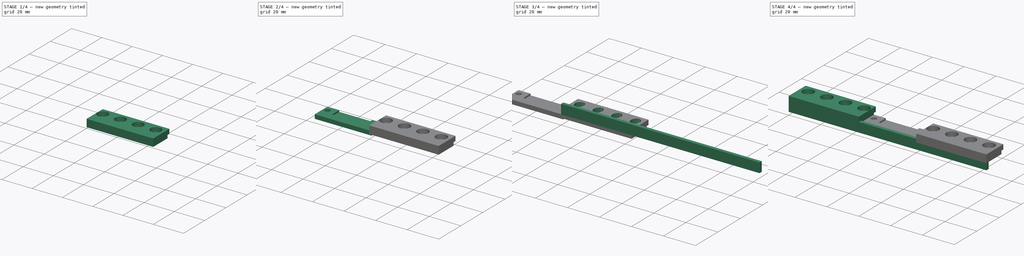
[diagram: build sequence overview — one tinted view per stage of 4, left to right]
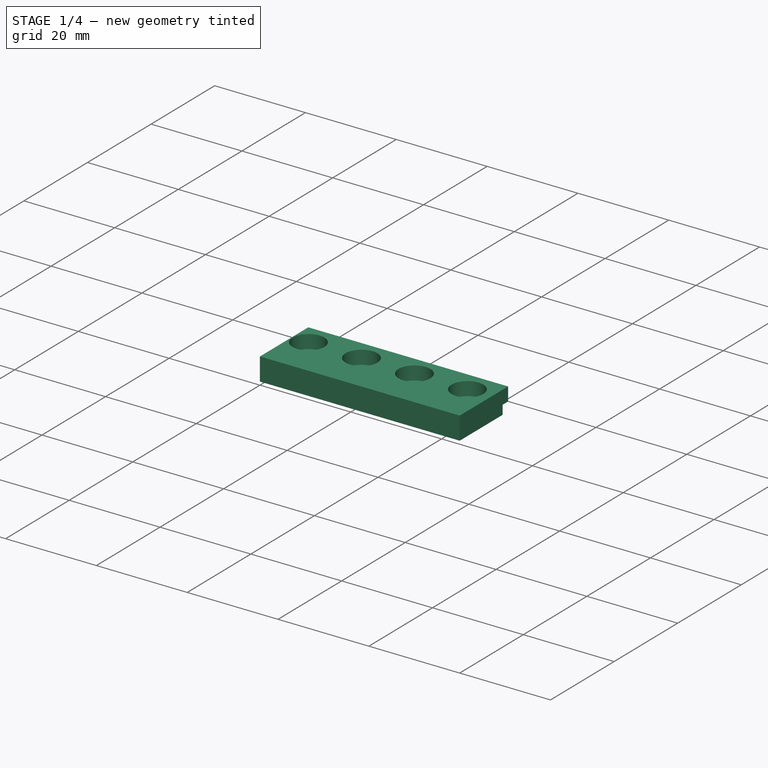
[diagram: stage 1 of 4 — iso view after this stage's code; geometry added in this stage tinted green]
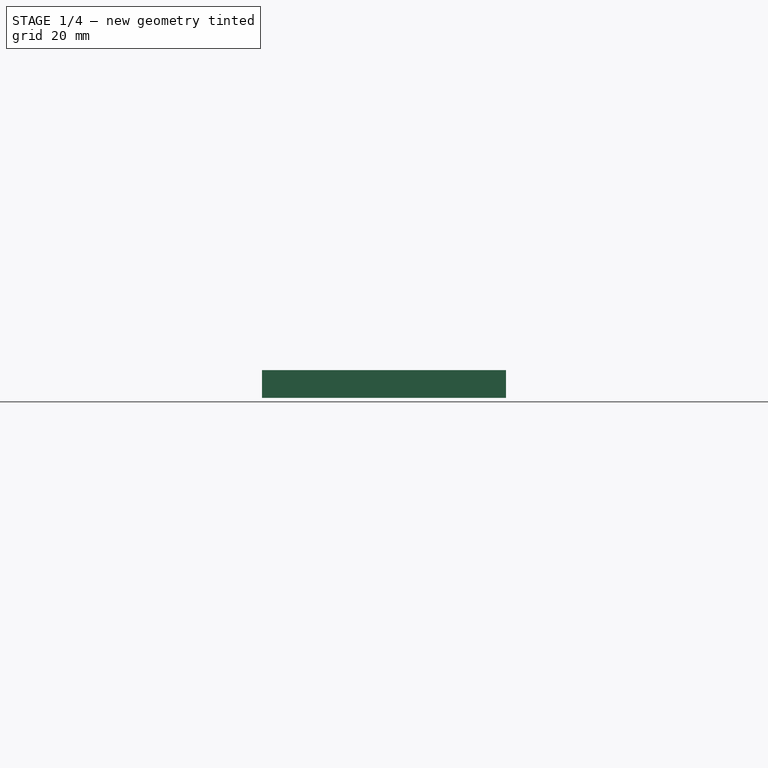
[diagram: stage 1 of 4 — front view after this stage's code; geometry added in this stage tinted green]
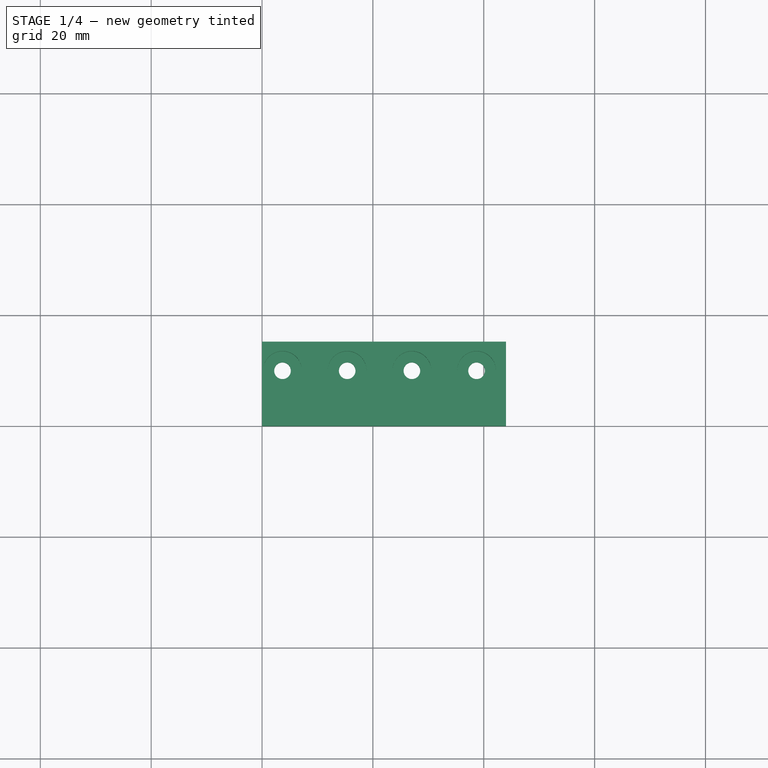
[diagram: stage 1 of 4 — top view after this stage's code; geometry added in this stage tinted green]
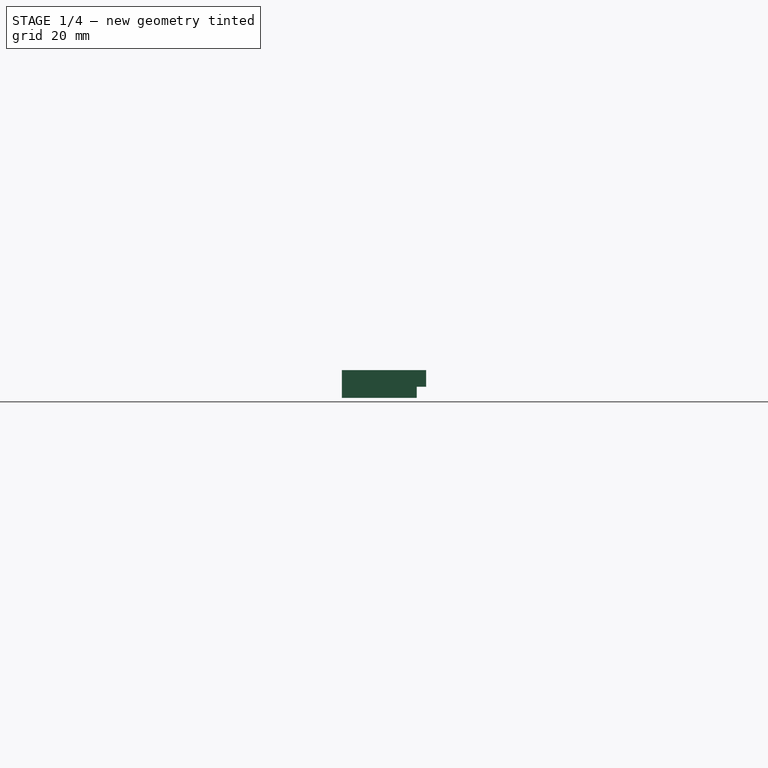
[diagram: stage 1 of 4 — right view after this stage's code; geometry added in this stage tinted green]
FCSTD DOCUMENT  (FreeCAD 0.19R24291 (Git))
Label: support1
License: Creative Commons Attribution-NonCommercial-ShareAlike
LicenseURL: http://creativecommons.org/licenses/by-nc-sa/4.0/
objects: PartDesign::Line×11, Sketcher::SketchObject×6, PartDesign::Pad×6, PartDesign::Body×6, PartDesign::CoordinateSystem×3, PartDesign::SubtractiveBox×2, PartDesign::FeatureBase×2, Part::Box×1, Part::FeaturePython×1, Part::MultiFuse×1, App::Part×1
note: 47 computed .brp shape members not serialized (recipe doc carries the construction recipe); baked Part::Feature solids carry a one-line shape summary decoded from their .brp

FEATURE [PartDesign::CoordinateSystem] LCS_0
  AttacherType = Attacher::AttachEngine3D
  MapMode = 2
  Support = -> [X_Axis]
FEATURE [PartDesign::CoordinateSystem] LCS_0001
  AttacherType = Attacher::AttachEngine3D
  MapMode = 2
  Support = -> [X_Axis001]
FEATURE [Sketcher::SketchObject] Sketch001
  FullyConstrained = true
  sketch-geometry (8):
    g0: LineSegment StartX=0 StartY=0 StartZ=0 EndX=44 EndY=0 EndZ=0
    g1: LineSegment StartX=44 StartY=0 StartZ=0 EndX=44 EndY=15.2 EndZ=0
    g2: LineSegment StartX=44 StartY=15.2 StartZ=0 EndX=0 EndY=15.2 EndZ=0
    g3: LineSegment StartX=0 StartY=15.2 StartZ=0 EndX=0 EndY=0 EndZ=0
    g4: Circle CenterX=5.3 CenterY=10 CenterZ=0 NormalX=0 NormalY=0 NormalZ=1 AngleXU=0 Radius=1.6
    g5: Circle CenterX=16.97 CenterY=10 CenterZ=0 NormalX=0 NormalY=0 NormalZ=1 AngleXU=0 Radius=1.6
    g6: Circle CenterX=28.64 CenterY=10 CenterZ=0 NormalX=0 NormalY=0 NormalZ=1 AngleXU=0 Radius=1.6
    g7: Circle CenterX=40.31 CenterY=10 CenterZ=0 NormalX=0 NormalY=0 NormalZ=1 AngleXU=0 Radius=1.6
  constraints (23):
    c: Coincident(g0,g1)
    c: Coincident(g1,g2)
    c: Coincident(g2,g3)
    c: Coincident(g3,g0)
    c: Horizontal(g0)
    c: Horizontal(g2)
    c: Vertical(g1)
    c: Vertical(g3)
    c: Coincident(g0,g-1)
    c: Equal(g5,g4)
    c: Equal(g4,g6)
    c: Equal(g6,g7)
    c: DistanceY(g5,g4) = 0
    c: DistanceY(g6,g5) = 0
    c: DistanceY(g7,g6) = 0
    c: Distance(g4,g3) = 5.3
    c: Distance(g4,g2) = 5.2
    c: DistanceX(g4,g5) = 11.67
    c: DistanceX(g5,g6) = 11.67
    c: DistanceX(g6,g7) = 11.67
    c: DistanceY(g3,g3) = 15.2
    c: DistanceX(g0,g0) = 44
    c: Diameter(g4) = 3.2
FEATURE [Sketcher::SketchObject] Sketch002
  FullyConstrained = true
  sketch-geometry (8):
    g0: LineSegment StartX=0 StartY=0 StartZ=0 EndX=44 EndY=0 EndZ=0
    g1: LineSegment StartX=44 StartY=0 StartZ=0 EndX=44 EndY=15.2 EndZ=0
    g2: LineSegment StartX=44 StartY=15.2 StartZ=0 EndX=0 EndY=15.2 EndZ=0
    g3: LineSegment StartX=0 StartY=15.2 StartZ=0 EndX=0 EndY=0 EndZ=0
    g4: Circle CenterX=3.69 CenterY=10 CenterZ=0 NormalX=0 NormalY=0 NormalZ=1 AngleXU=0 Radius=1.5
    g5: Circle CenterX=15.36 CenterY=10 CenterZ=0 NormalX=0 NormalY=0 NormalZ=1 AngleXU=0 Radius=1.5
    g6: Circle CenterX=27.03 CenterY=10 CenterZ=0 NormalX=0 NormalY=0 NormalZ=1 AngleXU=0 Radius=1.5
    g7: Circle CenterX=38.7 CenterY=10 CenterZ=0 NormalX=0 NormalY=0 NormalZ=1 AngleXU=0 Radius=1.5
  constraints (24):
    c: Coincident(g0,g1)
    c: Coincident(g1,g2)
    c: Coincident(g2,g3)
    c: Coincident(g3,g0)
    c: Horizontal(g0)
    c: Horizontal(g2)
    c: Vertical(g1)
    c: Vertical(g3)
    c: Coincident(g0,g-1)
    c: Equal(g5,g4)
    c: Equal(g4,g6)
    c: Equal(g6,g7)
    c: DistanceY(g5,g4) = 0
    c: DistanceY(g6,g5) = 0
    c: DistanceY(g7,g6) = 0
    c: Distance(g4,g3) = 3.69
    c: Distance(g4,g2) = 5.2
    c: DistanceX(g4,g5) = 11.67
    c: DistanceX(g5,g6) = 11.67
    c: DistanceX(g6,g7) = 11.67
    c: DistanceY(g3,g3) = 15.2
    c: DistanceX(g0,g0) = 44
    c: Distance(g7,g1) = 5.3
    c: Diameter(g4) = 3
FEATURE [PartDesign::CoordinateSystem] LCS_0002
  AttacherType = Attacher::AttachEngine3D
  MapMode = 2
  Support = -> [X_Axis002]
FEATURE [Sketcher::SketchObject] Sketch003
  FullyConstrained = true
  MapMode = 2
  Support = -> [Sketch002]
  sketch-geometry (8):
    g0: LineSegment StartX=0 StartY=0 StartZ=0 EndX=44 EndY=0 EndZ=0
    g1: LineSegment StartX=44 StartY=0 StartZ=0 EndX=44 EndY=15.2 EndZ=0
    g2: LineSegment StartX=44 StartY=15.2 StartZ=0 EndX=0 EndY=15.2 EndZ=0
    g3: LineSegment StartX=0 StartY=15.2 StartZ=0 EndX=0 EndY=0 EndZ=0
    g4: Circle CenterX=3.69 CenterY=10 CenterZ=0 NormalX=0 NormalY=0 NormalZ=1 AngleXU=0 Radius=3.5
    g5: Circle CenterX=15.36 CenterY=10 CenterZ=0 NormalX=0 NormalY=0 NormalZ=1 AngleXU=0 Radius=3.5
    g6: Circle CenterX=27.03 CenterY=10 CenterZ=0 NormalX=0 NormalY=0 NormalZ=1 AngleXU=0 Radius=3.5
    g7: Circle CenterX=38.7 CenterY=10 CenterZ=0 NormalX=0 NormalY=0 NormalZ=1 AngleXU=0 Radius=3.5
  constraints (24):
    c: Coincident(g0,g1)
    c: Coincident(g1,g2)
    c: Coincident(g2,g3)
    c: Coincident(g3,g0)
    c: Horizontal(g0)
    c: Horizontal(g2)
    c: Vertical(g1)
    c: Vertical(g3)
    c: Coincident(g0,g-1)
    c: Equal(g5,g4)
    c: Equal(g4,g6)
    c: Equal(g6,g7)
    c: Radius(g4) = 3.5
    c: DistanceY(g5,g4) = 0
    c: DistanceY(g6,g5) = 0
    c: DistanceY(g7,g6) = 0
    c: Distance(g4,g3) = 3.69
    c: Distance(g4,g2) = 5.2
    c: DistanceX(g4,g5) = 11.67
    c: DistanceX(g5,g6) = 11.67
    c: DistanceX(g6,g7) = 11.67
    c: DistanceY(g3,g3) = 15.2
    c: DistanceX(g0,g0) = 44
    c: Distance(g7,g1) = 5.3
FEATURE [PartDesign::Pad] Pad003
  Direction = (1,1,1)
  Length = 3
  Length2 = 100
  Profile = -> Sketch003
  Type = 0
FEATURE [PartDesign::Pad] Pad002
  BaseFeature = -> Pad003
  Direction = (1,1,1)
  Length = 2
  Length2 = 100
  Profile = -> Sketch002
  Reversed = true
  Type = 0
FEATURE [PartDesign::SubtractiveBox] Box005
  AttacherType = Attacher::AttachEngine3D
  BaseFeature = -> Pad002
  Height = 1.7
  Length = 44
  MapMode = 49
  Placement = pos=(44,15.2,0) rot=(0,0.707107,-0.707107;3.14159rad)
  Support = -> [Pad002]
  Width = 4
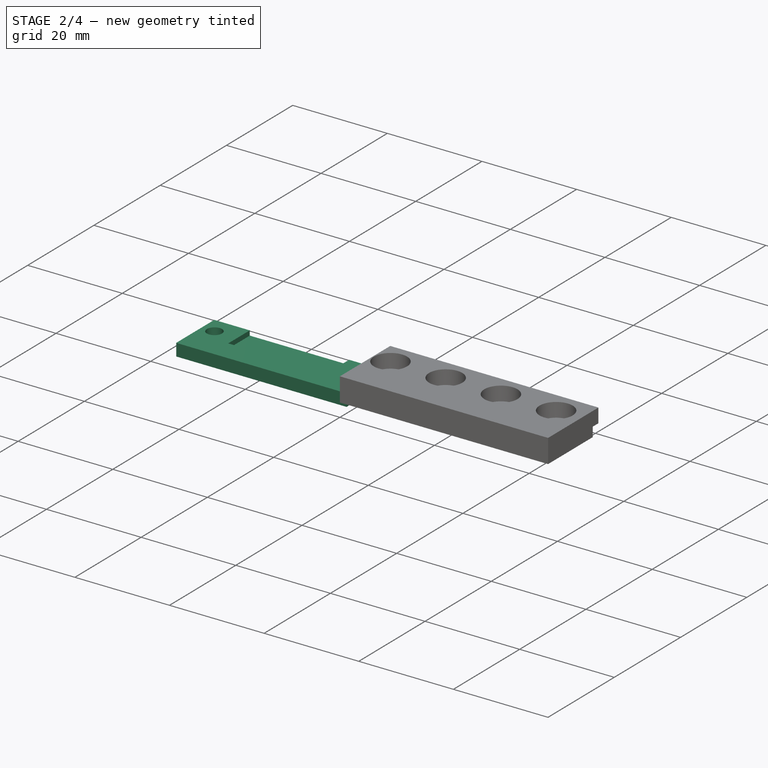
[diagram: stage 2 of 4 — iso view after this stage's code; geometry added in this stage tinted green]
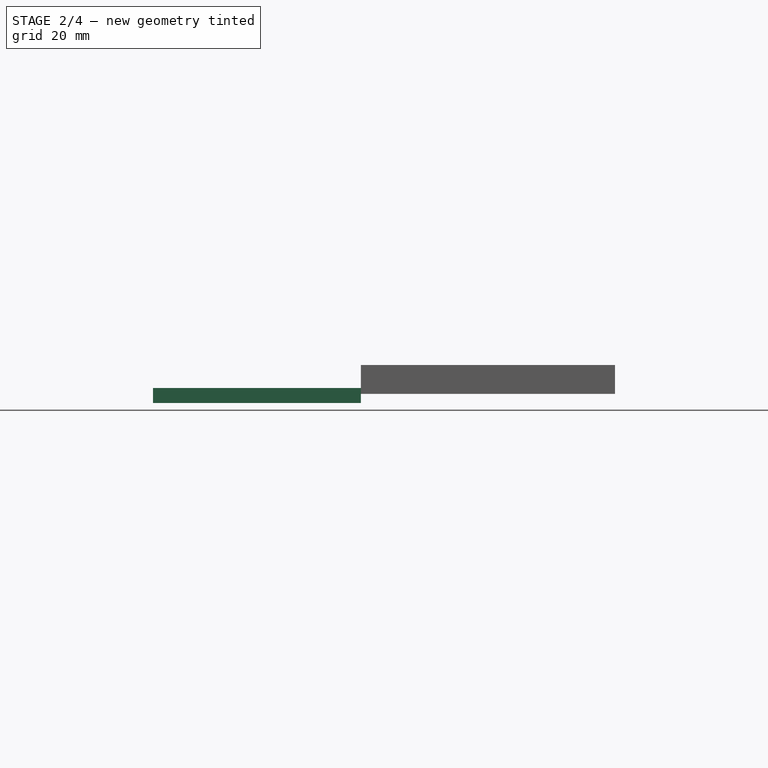
[diagram: stage 2 of 4 — front view after this stage's code; geometry added in this stage tinted green]
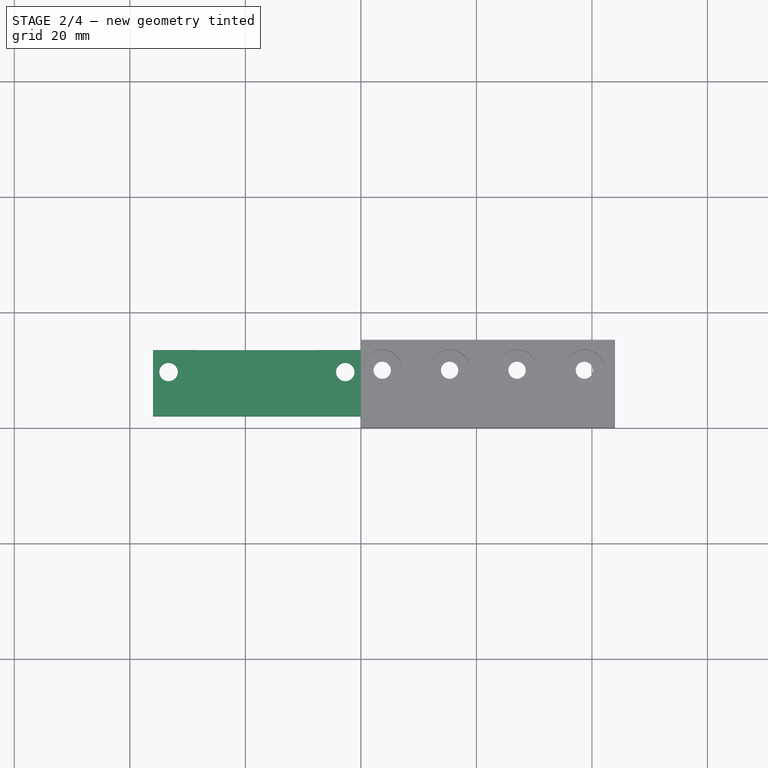
[diagram: stage 2 of 4 — top view after this stage's code; geometry added in this stage tinted green]
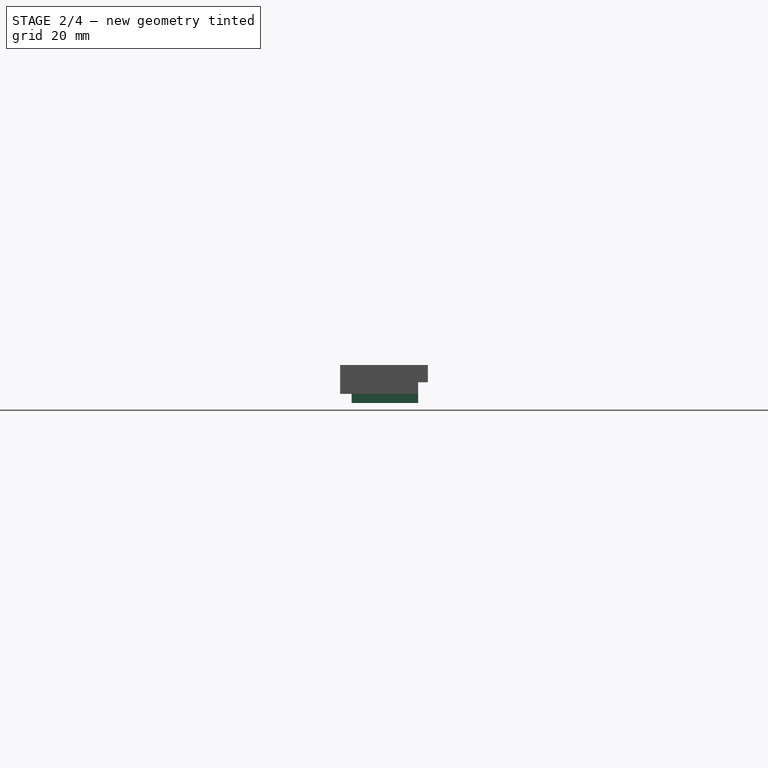
[diagram: stage 2 of 4 — right view after this stage's code; geometry added in this stage tinted green]
FEATURE [PartDesign::Body] Body002
  BaseFeature = -> Box006
  Group = -> [BaseFeature]
  Origin = -> Origin003
  Placement = pos=(-80,0,-6) rot=(0,0,1;0rad)
  Tip = -> BaseFeature
FEATURE [Sketcher::SketchObject] Sketch004
  FullyConstrained = true
  MapMode = 5
  Support = -> [XY_Plane005]
  sketch-geometry (10):
    g0: LineSegment StartX=0 StartY=13.5 StartZ=0 EndX=0 EndY=2 EndZ=0
    g1: LineSegment StartX=0 StartY=2 StartZ=0 EndX=-36 EndY=2 EndZ=0
    g2: LineSegment StartX=-36 StartY=2 StartZ=0 EndX=-36 EndY=13.5 EndZ=0
    g3: Circle CenterX=-33.3 CenterY=9.7 CenterZ=0 NormalX=0 NormalY=0 NormalZ=1 AngleXU=0 Radius=1.6
    g4: Circle CenterX=-2.7 CenterY=9.7 CenterZ=0 NormalX=0 NormalY=0 NormalZ=1 AngleXU=0 Radius=1.6
    g5: LineSegment StartX=-36 StartY=13.5 StartZ=0 EndX=-28.5 EndY=13.5 EndZ=0
    g6: LineSegment StartX=-7.5 StartY=13.5 StartZ=0 EndX=-7.5 EndY=7 EndZ=0
    g7: LineSegment StartX=-7.5 StartY=7 StartZ=0 EndX=-28.5 EndY=7 EndZ=0
    g8: LineSegment StartX=-28.5 StartY=7 StartZ=0 EndX=-28.5 EndY=13.5 EndZ=0
    g9: LineSegment StartX=-7.5 StartY=13.5 StartZ=0 EndX=0 EndY=13.5 EndZ=0
  constraints (30):
    c: Coincident(g0,g1)
    c: Coincident(g1,g2)
    c: Horizontal(g1)
    c: Vertical(g0)
    c: Vertical(g2)
    c: PointOnObject(g0,g-2)
    c: Coincident(g5,g2)
    c: Horizontal(g5)
    c: Coincident(g6,g7)
    c: Coincident(g7,g8)
    c: Horizontal(g7)
    c: Vertical(g6)
    c: Vertical(g8)
    c: Coincident(g9,g0)
    c: Horizontal(g9)
    c: DistanceY(g2,g2) = 11.5
    c: Coincident(g5,g8)
    c: Coincident(g6,g9)
    c: Equal(g8,g6)
    c: Equal(g5,g9)
    c: DistanceX(g1,g1) = 36
    c: DistanceY(g1) = 2
    c: DistanceY(g8,g8) = 6.5
    c: DistanceX(g7,g7) = 21
    c: Distance(g3,g2) = 2.7
    c: Distance(g3,g1) = 7.7
    c: Equal(g4,g3)
    c: Distance(g4,g0) = 2.7
    c: Distance(g4,g1) = 7.7
    c: Diameter(g3) = 3.2
FEATURE [PartDesign::Pad] Pad004
  Direction = (1,1,1)
  Length = 1
  Length2 = 100
  Profile = -> Sketch004
  Type = 0
FEATURE [PartDesign::Body] Body
  Group = -> [LCS_0001,Sketch,Pad,Sketch001,Pad001,Box]
  Origin = -> Origin001
  Placement = pos=(-80,0,0) rot=(0,0,1;0rad)
  Tip = -> Box
FEATURE [PartDesign::Pad] Pad005
  Direction = (1,1,1)
  Length = 1.6
  Length2 = 100
  Profile = -> Sketch005
  Reversed = true
  Type = 0
FEATURE [PartDesign::Body] Body005
  Group = -> [Sketch005,Pad005]
  Origin = -> Origin006
  Placement = pos=(0,0,-2) rot=(0,0,1;0rad)
  Tip = -> Pad005
FEATURE [Part::FeaturePython] Connect  # WARN: FeaturePython — macro-defined, semantics opaque (R4)
  Objects = -> [Body004,Body005]
  Tolerance = 0
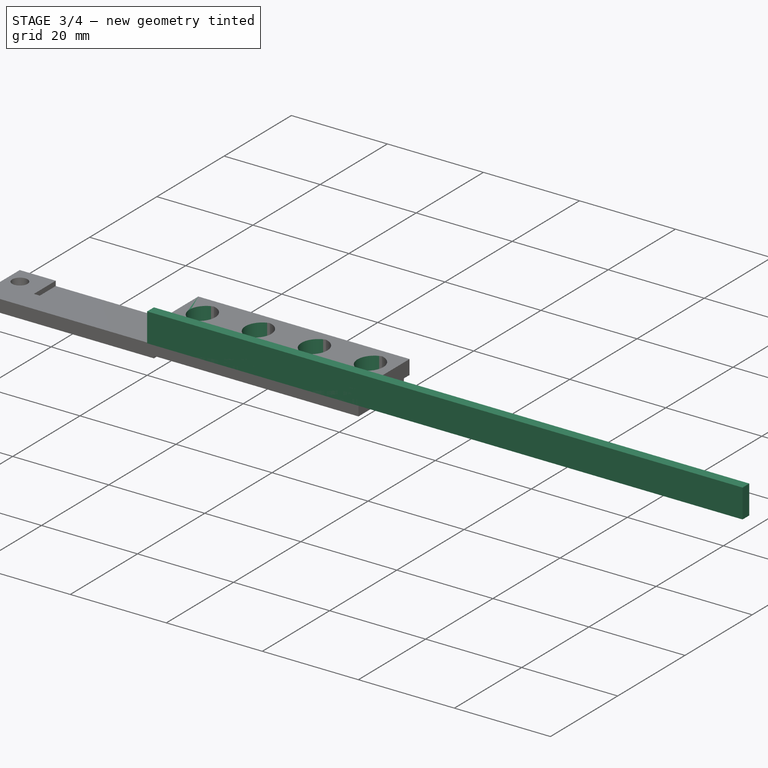
[diagram: stage 3 of 4 — iso view after this stage's code; geometry added in this stage tinted green]
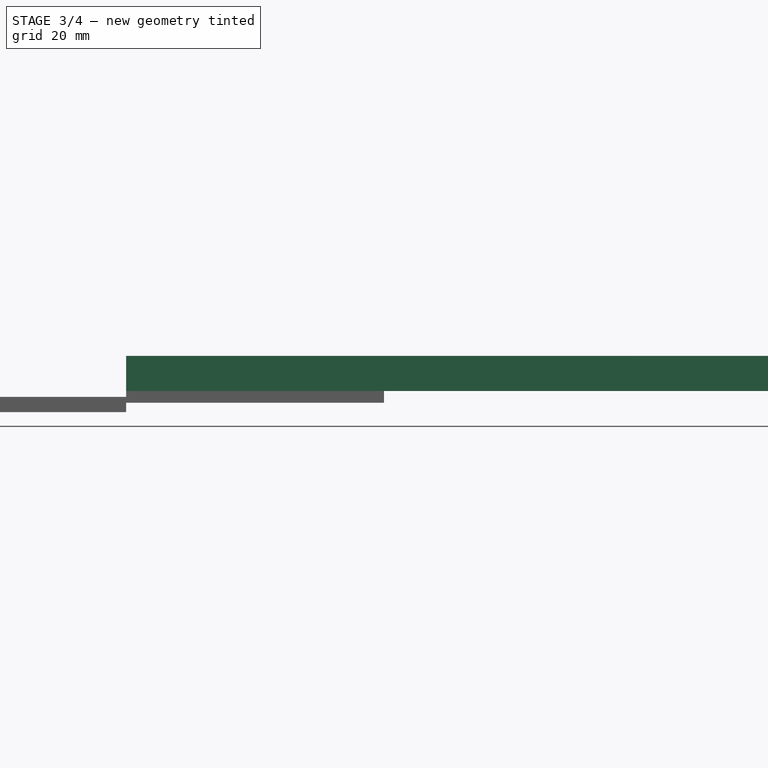
[diagram: stage 3 of 4 — front view after this stage's code; geometry added in this stage tinted green]
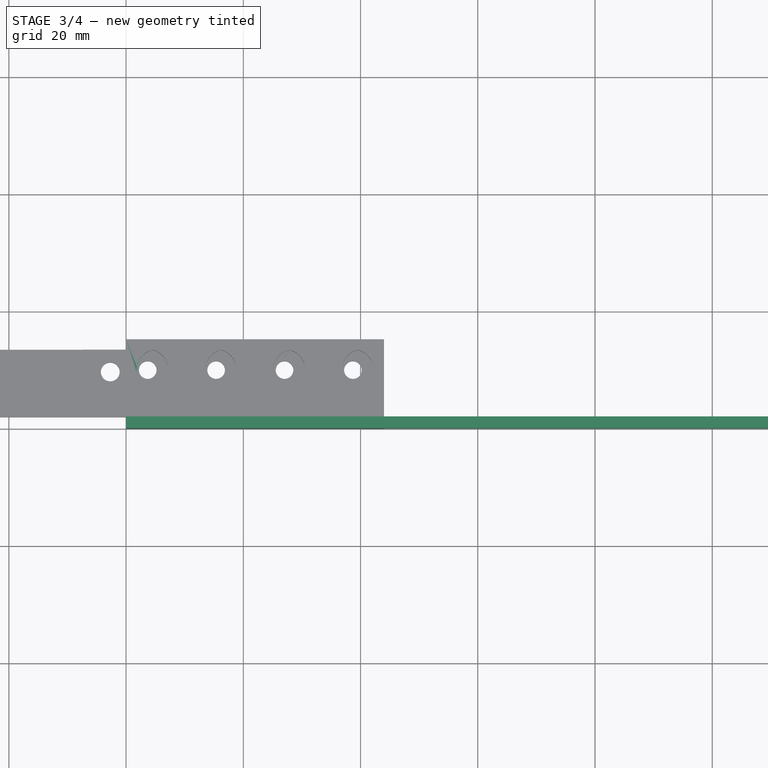
[diagram: stage 3 of 4 — top view after this stage's code; geometry added in this stage tinted green]
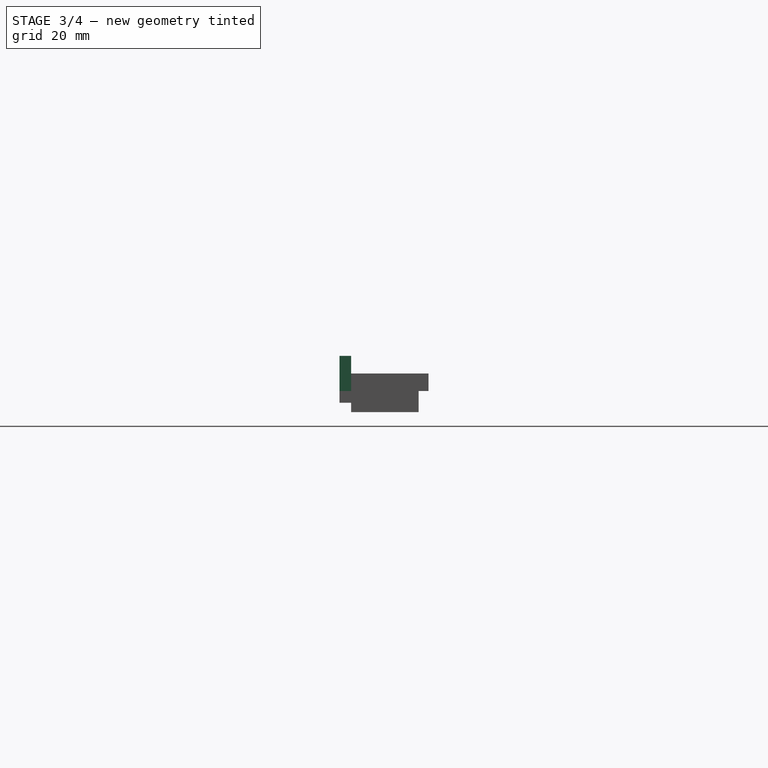
[diagram: stage 3 of 4 — right view after this stage's code; geometry added in this stage tinted green]
FEATURE [Part::Box] Box006  label="Cube"
  AttacherType = Attacher::AttachEngine3D
  Height = 6
  Length = 124
  Width = 2
FEATURE [PartDesign::FeatureBase] BaseFeature
  BaseFeature = -> Box006
FEATURE [PartDesign::Body] Body004
  Group = -> [Sketch004,Pad004]
  Origin = -> Origin005
  Placement = pos=(0,0,-2) rot=(0,0,1;0rad)
  Tip = -> Pad004
FEATURE [Sketcher::SketchObject] Sketch005
  FullyConstrained = true
  MapMode = 5
  Support = -> [XY_Plane006]
  sketch-geometry (6):
    g0: LineSegment StartX=0 StartY=13.5 StartZ=0 EndX=0 EndY=2 EndZ=0
    g1: LineSegment StartX=0 StartY=2 StartZ=0 EndX=-36 EndY=2 EndZ=0
    g2: LineSegment StartX=-36 StartY=2 StartZ=0 EndX=-36 EndY=13.5 EndZ=0
    g3: Circle CenterX=-33.3 CenterY=9.7 CenterZ=0 NormalX=0 NormalY=0 NormalZ=1 AngleXU=0 Radius=1.6
    g4: Circle CenterX=-2.7 CenterY=9.7 CenterZ=0 NormalX=0 NormalY=0 NormalZ=1 AngleXU=0 Radius=1.6
    g5: LineSegment StartX=-36 StartY=13.5 StartZ=0 EndX=0 EndY=13.5 EndZ=0
  constraints (18):
    c: Coincident(g0,g1)
    c: Coincident(g1,g2)
    c: Horizontal(g1)
    c: Vertical(g0)
    c: Vertical(g2)
    c: PointOnObject(g0,g-2)
    c: Coincident(g5,g2)
    c: Horizontal(g5)
    c: DistanceY(g2,g2) = 11.5
    c: DistanceX(g1,g1) = 36
    c: DistanceY(g1) = 2
    c: Distance(g3,g2) = 2.7
    c: Distance(g3,g1) = 7.7
    c: Equal(g4,g3)
    c: Distance(g4,g1) = 7.7
    c: Diameter(g3) = 3.2
    c: Coincident(g0,g5)
    c: Distance(g4,g0) = 2.7
FEATURE [Sketcher::SketchObject] Sketch
  FullyConstrained = true
  MapMode = 2
  Support = -> [Sketch005]
  sketch-geometry (8):
    g0: LineSegment StartX=0 StartY=0 StartZ=0 EndX=44 EndY=0 EndZ=0
    g1: LineSegment StartX=44 StartY=0 StartZ=0 EndX=44 EndY=15.2 EndZ=0
    g2: LineSegment StartX=44 StartY=15.2 StartZ=0 EndX=0 EndY=15.2 EndZ=0
    g3: LineSegment StartX=0 StartY=15.2 StartZ=0 EndX=0 EndY=0 EndZ=0
    g4: Circle CenterX=5.3 CenterY=10 CenterZ=0 NormalX=0 NormalY=0 NormalZ=1 AngleXU=0 Radius=3.5
    g5: Circle CenterX=16.97 CenterY=10 CenterZ=0 NormalX=0 NormalY=0 NormalZ=1 AngleXU=0 Radius=3.5
    g6: Circle CenterX=28.64 CenterY=10 CenterZ=0 NormalX=0 NormalY=0 NormalZ=1 AngleXU=0 Radius=3.5
    g7: Circle CenterX=40.31 CenterY=10 CenterZ=0 NormalX=0 NormalY=0 NormalZ=1 AngleXU=0 Radius=3.5
  constraints (23):
    c: Coincident(g0,g1)
    c: Coincident(g1,g2)
    c: Coincident(g2,g3)
    c: Coincident(g3,g0)
    c: Horizontal(g0)
    c: Horizontal(g2)
    c: Vertical(g1)
    c: Vertical(g3)
    c: Coincident(g0,g-1)
    c: Equal(g5,g4)
    c: Equal(g4,g6)
    c: Equal(g6,g7)
    c: Radius(g4) = 3.5
    c: DistanceY(g5,g4) = 0
    c: DistanceY(g6,g5) = 0
    c: DistanceY(g7,g6) = 0
    c: Distance(g4,g3) = 5.3
    c: Distance(g4,g2) = 5.2
    c: DistanceX(g4,g5) = 11.67
    c: DistanceX(g5,g6) = 11.67
    c: DistanceX(g6,g7) = 11.67
    c: DistanceY(g3,g3) = 15.2
    c: DistanceX(g0,g0) = 44
FEATURE [PartDesign::Pad] Pad
  Direction = (1,1,1)
  Length = 3
  Length2 = 100
  Profile = -> Sketch
  Type = 0
FEATURE [PartDesign::FeatureBase] BaseFeature001
  BaseFeature = -> Connect
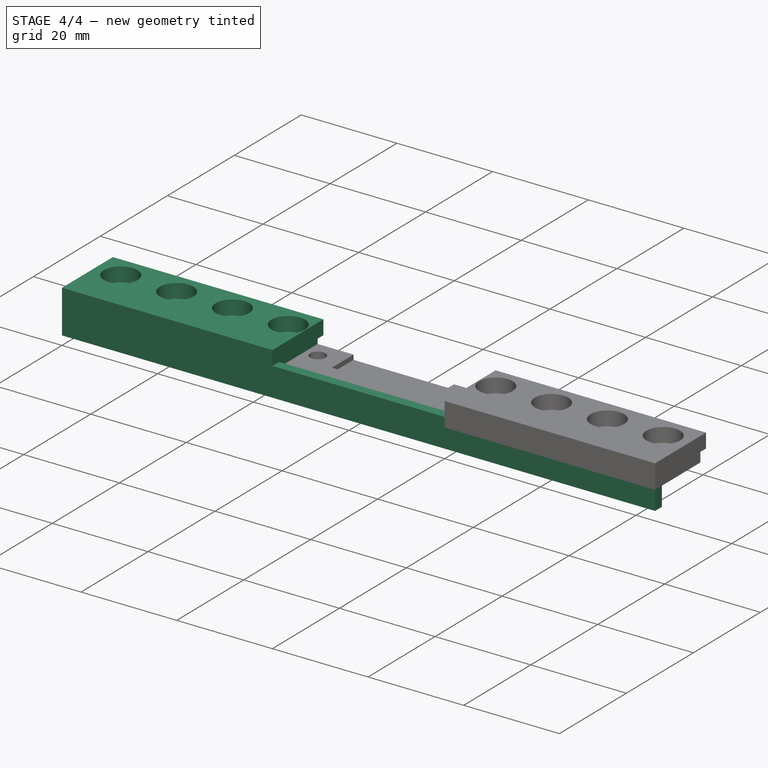
[diagram: stage 4 of 4 — iso view after this stage's code; geometry added in this stage tinted green]
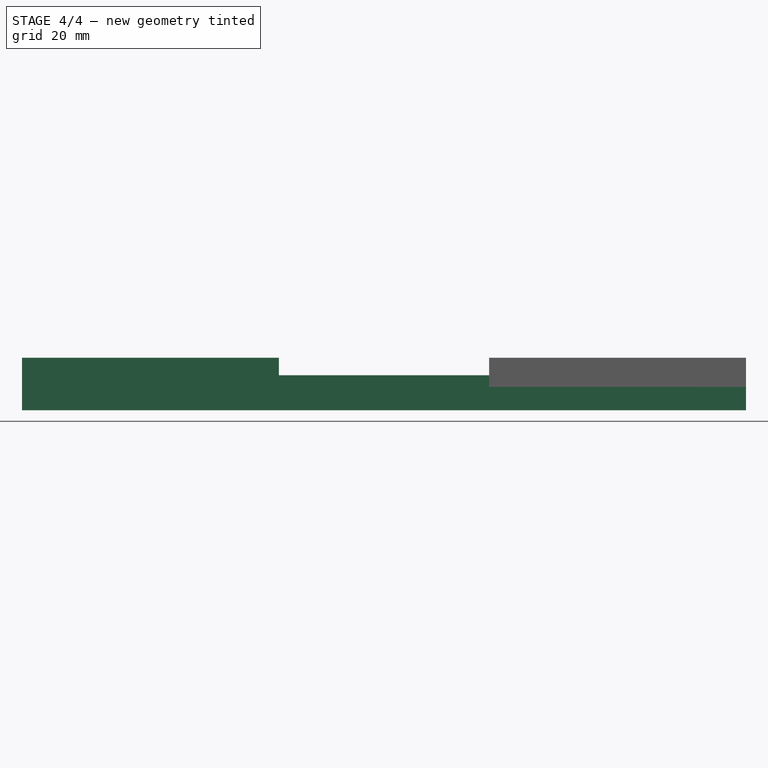
[diagram: stage 4 of 4 — front view after this stage's code; geometry added in this stage tinted green]
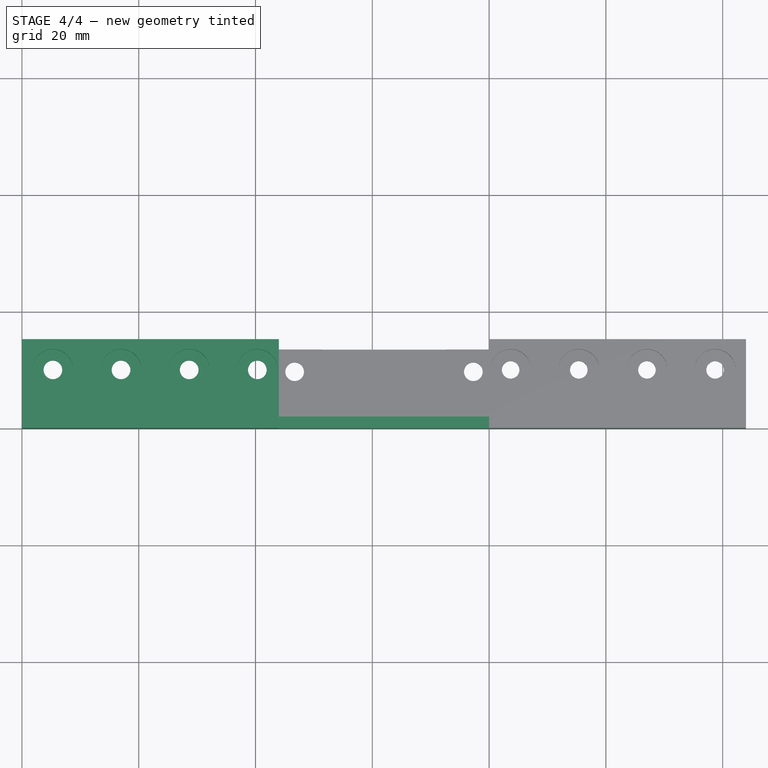
[diagram: stage 4 of 4 — top view after this stage's code; geometry added in this stage tinted green]
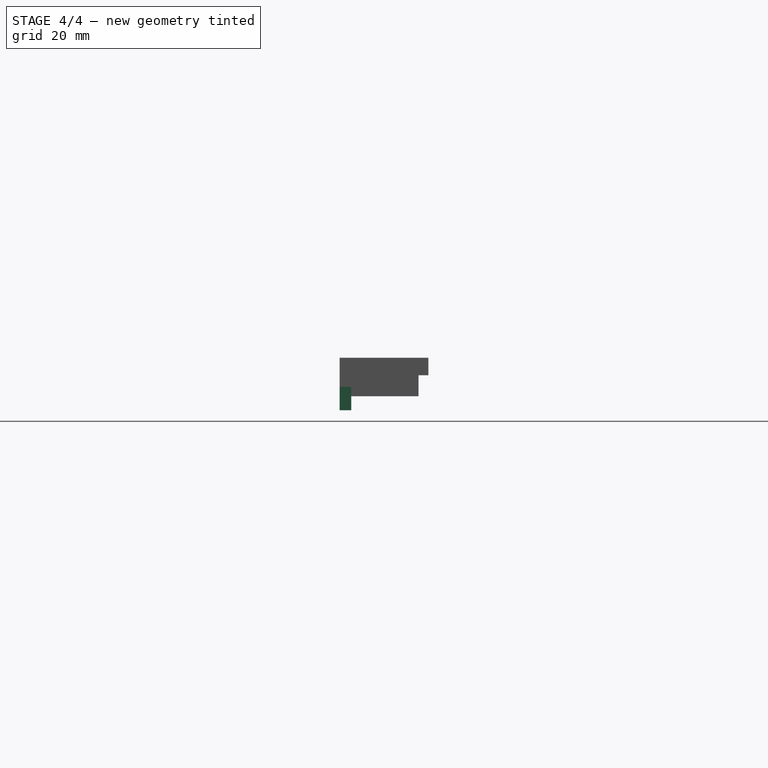
[diagram: stage 4 of 4 — right view after this stage's code; geometry added in this stage tinted green]
FEATURE [PartDesign::Pad] Pad001
  BaseFeature = -> Pad
  Direction = (1,1,1)
  Length = 2
  Length2 = 100
  Profile = -> Sketch001
  Reversed = true
  Type = 0
FEATURE [PartDesign::SubtractiveBox] Box
  AttacherType = Attacher::AttachEngine3D
  BaseFeature = -> Pad001
  Height = 1.7
  Length = 44
  MapMode = 49
  Placement = pos=(44,15.2,0) rot=(0,0.707107,-0.707107;3.14159rad)
  Support = -> [Pad001]
  Width = 4
FEATURE [PartDesign::Body] Body003
  BaseFeature = -> Connect
  Group = -> [BaseFeature001]
  Origin = -> Origin004
  Tip = -> BaseFeature001
FEATURE [PartDesign::Line] HoleAxis_10
  AttacherType = Attacher::AttachEngineLine
  Length = 4.2272
  MapMode = 19
  Placement = pos=(38.7,10,5e-16) rot=(0,0,1;0rad)
  ResizeMode = 1
  Support = -> [Box005]
FEATURE [PartDesign::Body] Body001
  Group = -> [LCS_0002,Sketch003,Pad003,Sketch002,Pad002,Box005,HoleAxis_10]
  Origin = -> Origin002
  Tip = -> Box005
FEATURE [Part::MultiFuse] Fusion
  Shapes = -> [Body,Body001,Body002,Body003]
FEATURE [PartDesign::Line] HoleAxis_1 .. HoleAxis_4  x4 (patterned run collapsed; names and placements below)
  AttacherType = Attacher::AttachEngineLine
  Length = 4.50902
  MapMode = 19
  ResizeMode = 1
  Support = -> [Fusion]
  placements: 4 in arithmetic series — first pos=(-74.7,10,3.4e-15) rot=(0,0,1;0rad), step (11.67,-1.77636e-15,-1.1e-15), last pos=(-39.69,10,3e-16) rot=(0,0,1;0rad)
FEATURE [PartDesign::Line] HoleAxis_5
  AttacherType = Attacher::AttachEngineLine
  Length = 5.63627
  MapMode = 19
  Placement = pos=(-2.7,9.7,-1) rot=(0,0,1;0rad)
  ResizeMode = 1
  Support = -> [Fusion]
FEATURE [PartDesign::Line] HoleAxis_6
  AttacherType = Attacher::AttachEngineLine
  Length = 5.63627
  MapMode = 19
  Placement = pos=(-33.3,9.7,-1) rot=(0,0,1;0rad)
  ResizeMode = 1
  Support = -> [Fusion]
FEATURE [PartDesign::Line] HoleAxis_7
  AttacherType = Attacher::AttachEngineLine
  Length = 4.2272
  MapMode = 19
  Placement = pos=(15.36,10,2.5e-15) rot=(0,0,1;1.5708rad)
  ResizeMode = 1
  Support = -> [Fusion]
FEATURE [PartDesign::Line] HoleAxis_8
  AttacherType = Attacher::AttachEngineLine
  Length = 4.2272
  MapMode = 19
  Placement = pos=(27.03,10,1.5e-15) rot=(0,0,1;0rad)
  ResizeMode = 1
  Support = -> [Fusion]
FEATURE [PartDesign::Line] HoleAxis_9
  AttacherType = Attacher::AttachEngineLine
  Length = 4.2272
  MapMode = 19
  Placement = pos=(3.69,10,3.5e-15) rot=(0,0,1;0rad)
  ResizeMode = 1
  Support = -> [Fusion]
FEATURE [PartDesign::Line] HoleAxis_11
  AttacherType = Attacher::AttachEngineLine
  Length = 4.2272
  MapMode = 19
  Placement = pos=(38.7,10,5e-16) rot=(0,0,1;0rad)
  ResizeMode = 1
  Support = -> [Fusion]
FEATURE [App::Part] Part
  Group = -> [LCS_0,Body,Body001,Body002,Box006,Fusion,HoleAxis_1,HoleAxis_2,HoleAxis_3,HoleAxis_4,HoleAxis_5,HoleAxis_6,HoleAxis_7,HoleAxis_8,HoleAxis_9,Body004,Connect,HoleAxis_11]
  Origin = -> Origin
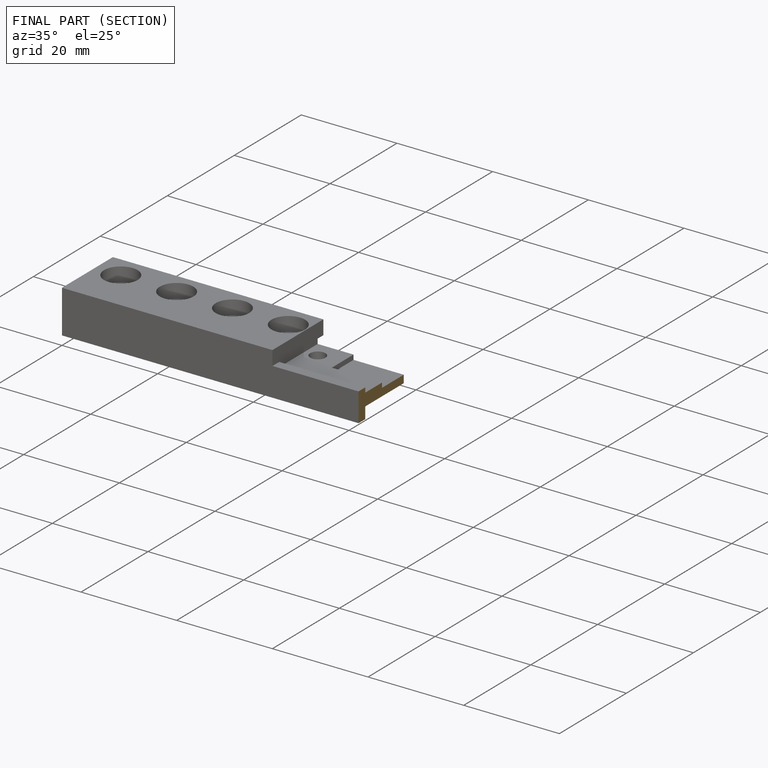
[diagram: finished part — half-section view (interior)]
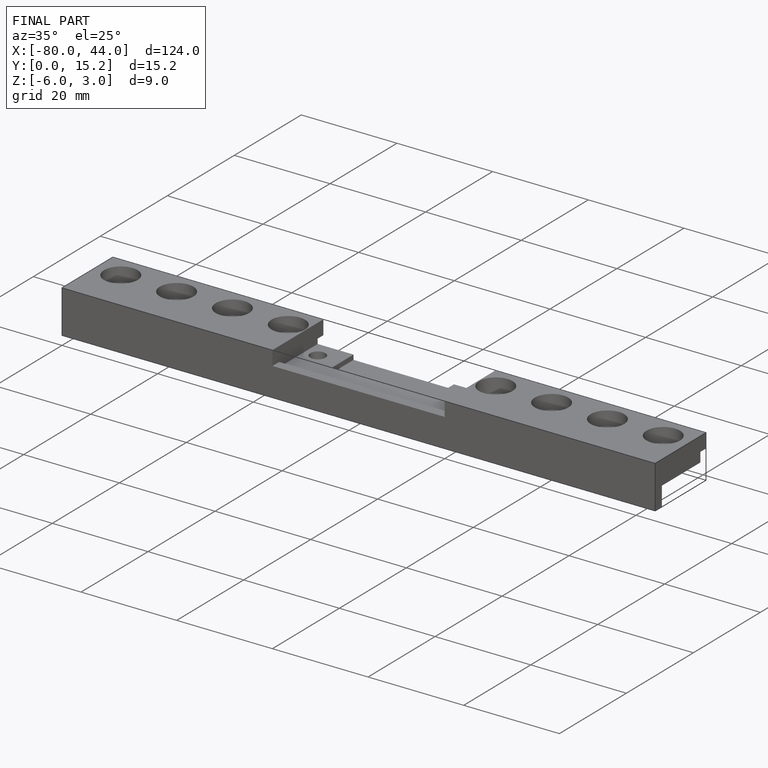
[diagram: finished part — iso view with bounding-box wireframe]
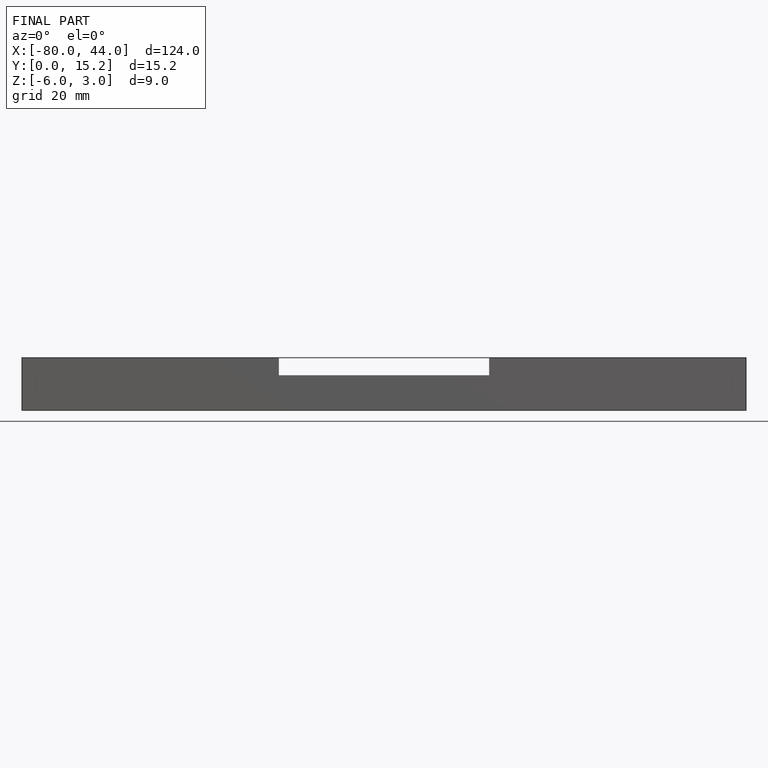
[diagram: finished part — front view with bounding-box wireframe]
